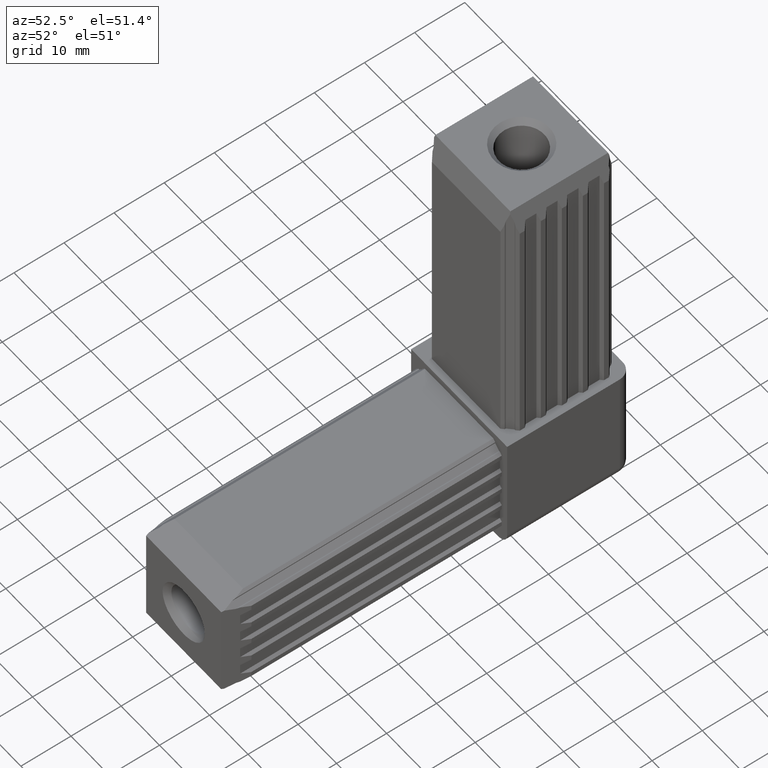
[diagram: clean part render]
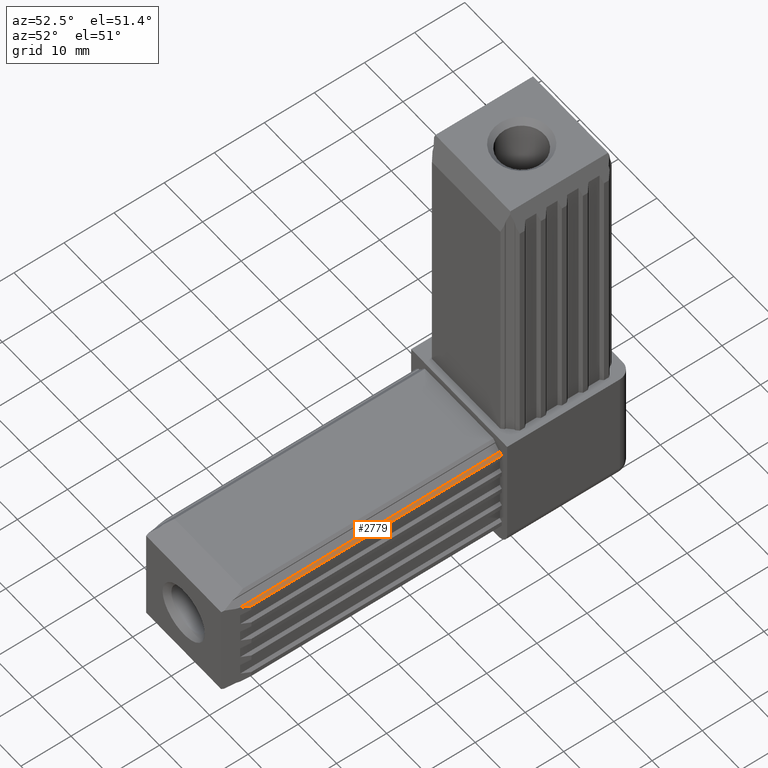
[diagram: same view with one face highlighted and labeled with its STEP entity id]
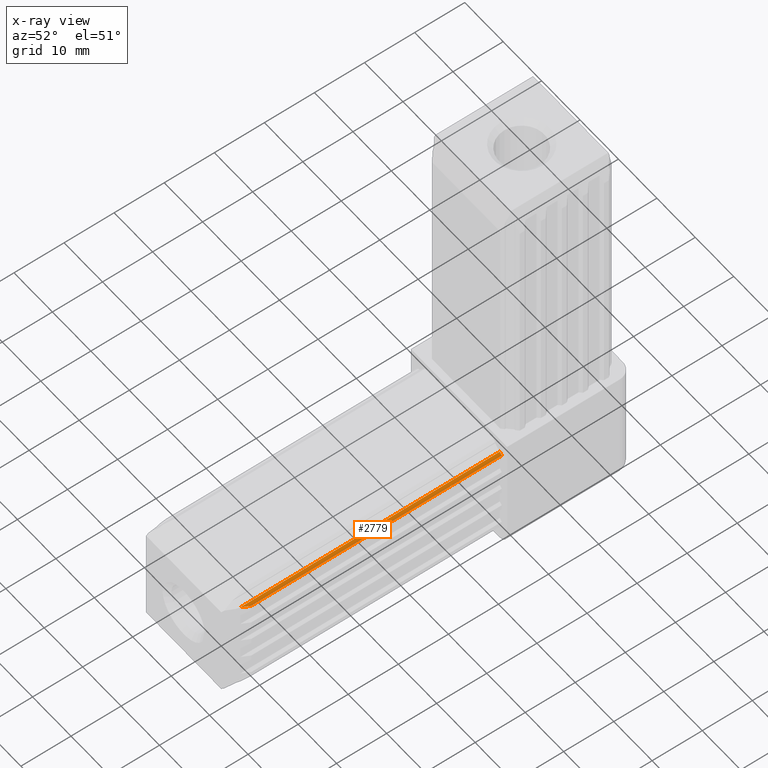
[diagram: x-ray of the same camera — body ghosted, the highlighted face saturated]
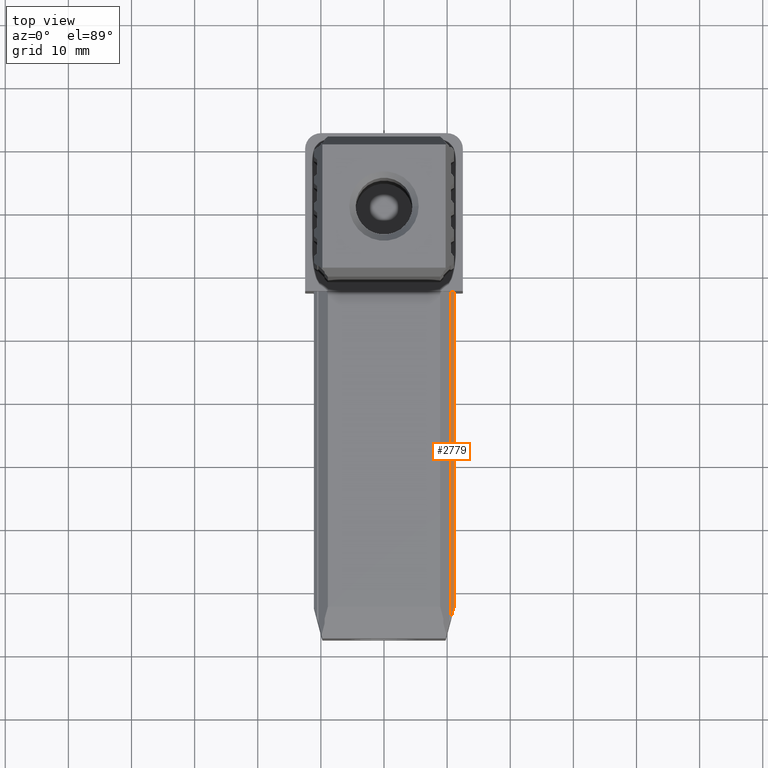
[diagram: same view with one face highlighted and labeled with its STEP entity id]
A machine part, auxiliary view. The second image highlights one B-rep face of the part: STEP entity #2779.
The next image is the same camera in x-ray: the body ghosted, the highlighted face saturated — about 0% of this face is hidden behind the body in this view.
A second angle (top view) of the same face is appended — the face is thin or edge-on in the first view.
In plain terms, the highlighted planar face has unit normal (0.7071, 0, 0.7071).
Its self-contained STEP definition (entity closure, byte-faithful):
#112=PLANE('',#2956);
#260=FACE_OUTER_BOUND('',#405,.T.);
#405=EDGE_LOOP('',(#2519,#2520,#2521,#2522));
#516=LINE('',#3875,#897);
#717=LINE('',#4272,#1098);
#792=LINE('',#4421,#1173);
#793=LINE('',#4423,#1174);
#897=VECTOR('',#3135,10.);
#1098=VECTOR('',#3416,10.);
#1173=VECTOR('',#3581,10.);
#1174=VECTOR('',#3584,10.);
#1297=VERTEX_POINT('',#3872);
#1298=VERTEX_POINT('',#3874);
#1453=VERTEX_POINT('',#4269);
#1454=VERTEX_POINT('',#4271);
#1572=EDGE_CURVE('',#1297,#1298,#516,.T.);
#1773=EDGE_CURVE('',#1453,#1454,#717,.T.);
#1848=EDGE_CURVE('',#1297,#1454,#792,.T.);
#1849=EDGE_CURVE('',#1298,#1453,#793,.T.);
#2519=ORIENTED_EDGE('',*,*,#1773,.F.);
#2520=ORIENTED_EDGE('',*,*,#1849,.F.);
#2521=ORIENTED_EDGE('',*,*,#1572,.F.);
#2522=ORIENTED_EDGE('',*,*,#1848,.T.);
#2779=ADVANCED_FACE('',(#260),#112,.T.);
#2956=AXIS2_PLACEMENT_3D('',#4422,#3582,#3583);
#3135=DIRECTION('',(0.707106781186541,0.,-0.707106781186554));
#3416=DIRECTION('',(-0.250562807085731,-0.935113126531028,0.250562807085736));
#3581=DIRECTION('',(0.,-1.,0.));
#3582=DIRECTION('center_axis',(0.707106781186554,0.,0.707106781186541));
#3583=DIRECTION('ref_axis',(-0.707106781186541,0.,0.707106781186554));
#3584=DIRECTION('',(0.,-1.,0.));
#3872=CARTESIAN_POINT('',(10.5999999999998,-12.5,9.39999999999961));
#3874=CARTESIAN_POINT('',(11.0999999999998,-12.5,8.89999999999958));
#3875=CARTESIAN_POINT('',(7.42499999999985,-12.5,12.5749999999996));
#4269=CARTESIAN_POINT('',(11.0999999999998,-62.4999999999999,8.89999999999958));
#4271=CARTESIAN_POINT('',(10.5999999999998,-64.3660254037844,9.39999999999961));
#4272=CARTESIAN_POINT('',(16.8650112107234,-40.9846852553754,3.13498878927593));
#4421=CARTESIAN_POINT('',(10.5999999999998,-12.5,9.39999999999961));
#4422=CARTESIAN_POINT('Origin',(11.0999999999998,-12.5,8.89999999999958));
#4423=CARTESIAN_POINT('',(11.0999999999998,-12.5,8.89999999999958));